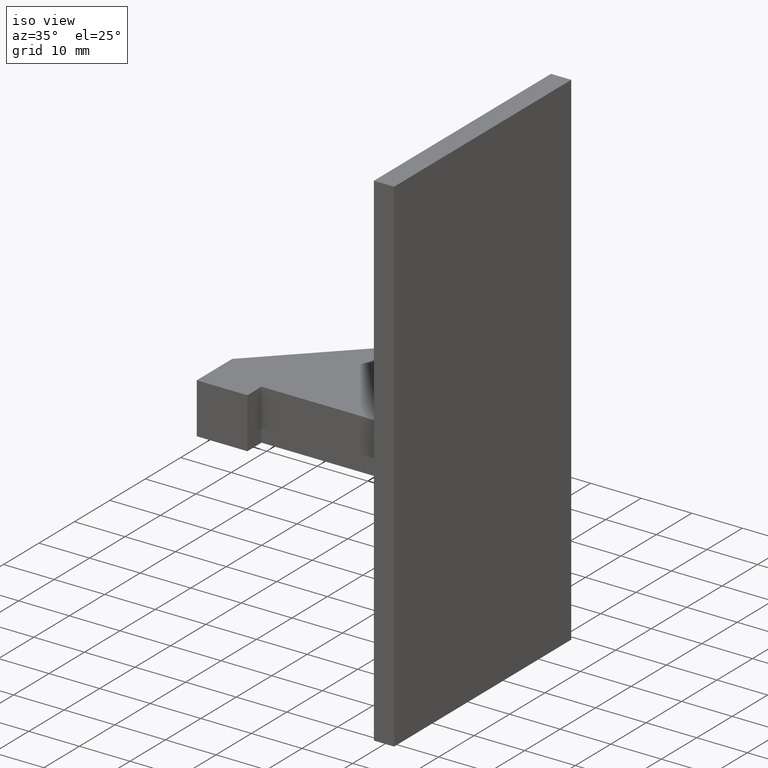
[diagram: clean part render]
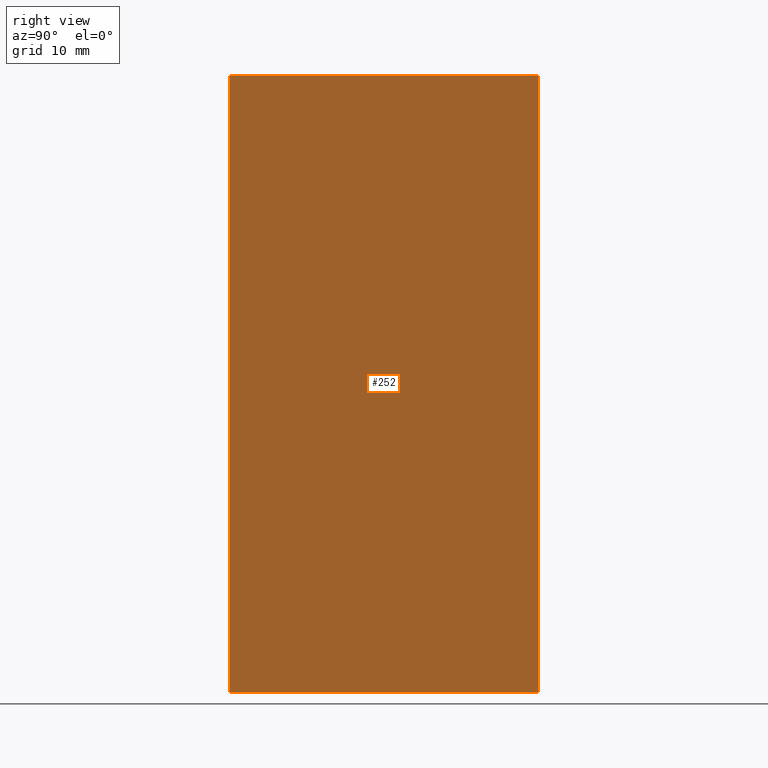
[diagram: tour spotlight — one face highlighted and labeled with its STEP entity id]
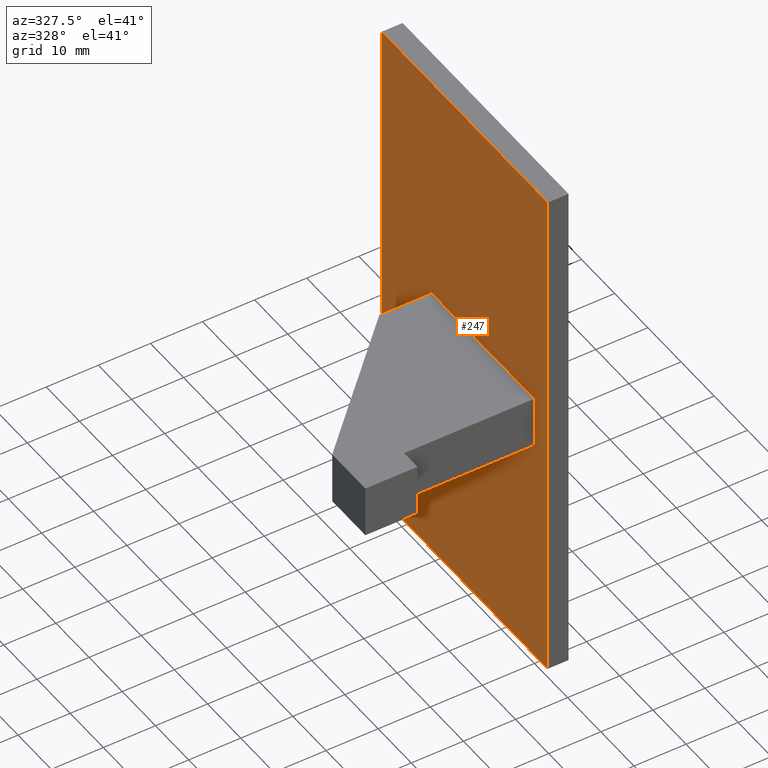
[diagram: tour spotlight — one face highlighted and labeled with its STEP entity id]
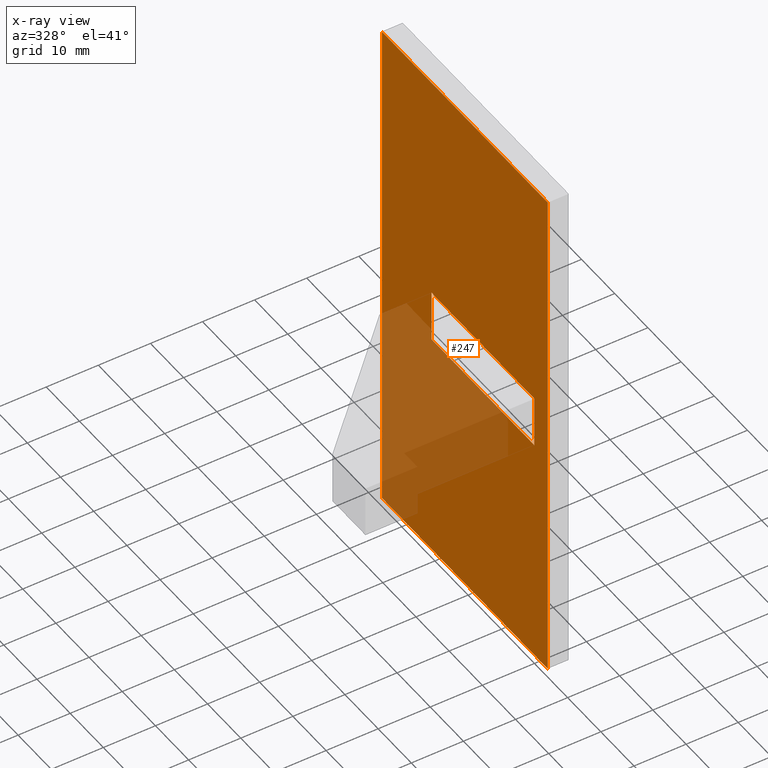
[diagram: x-ray of the same camera — body ghosted, this tour face saturated]
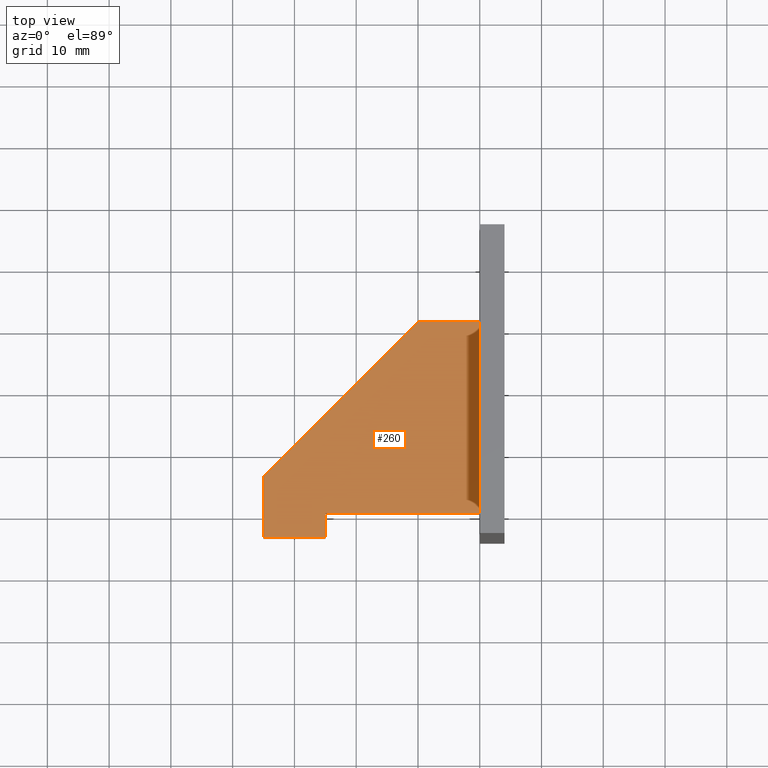
[diagram: tour spotlight — one face highlighted and labeled with its STEP entity id]
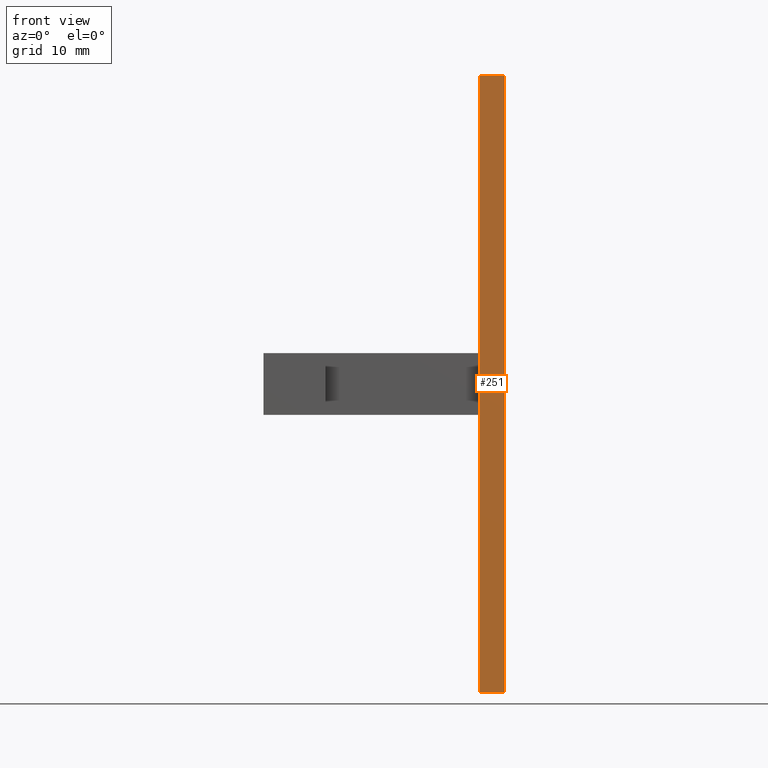
[diagram: tour spotlight — one face highlighted and labeled with its STEP entity id]
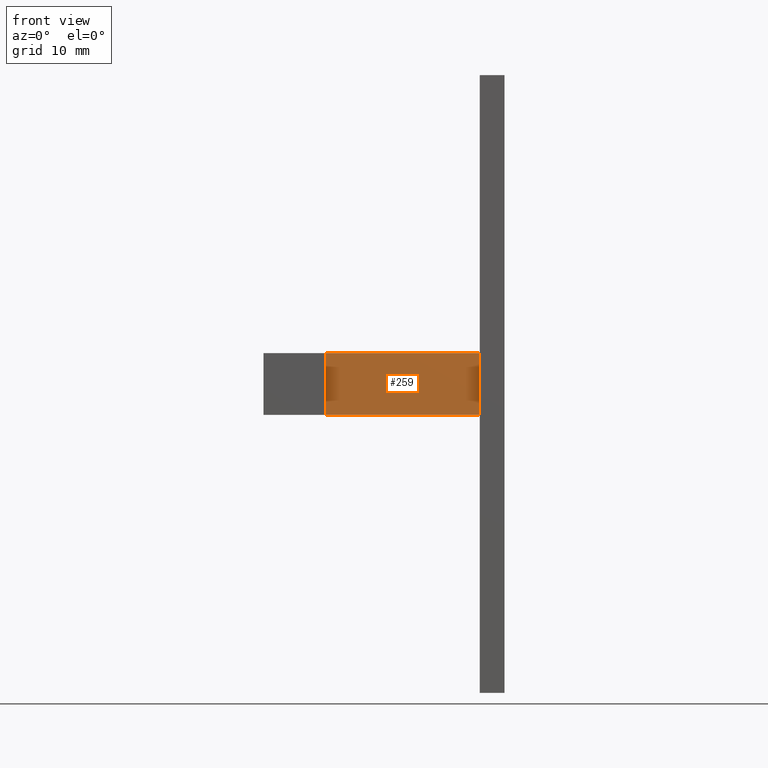
[diagram: tour spotlight — one face highlighted and labeled with its STEP entity id]
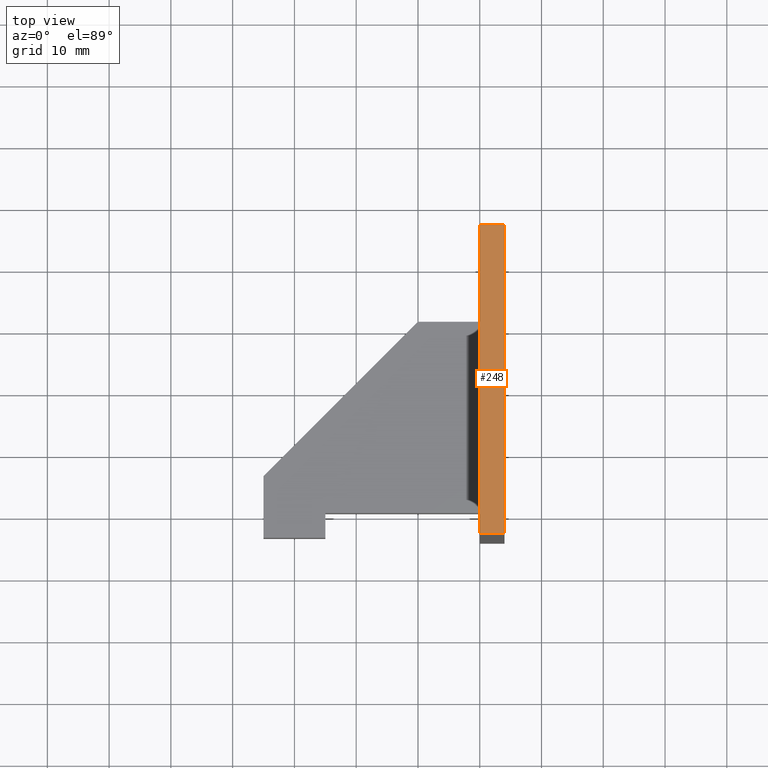
[diagram: tour spotlight — one face highlighted and labeled with its STEP entity id]
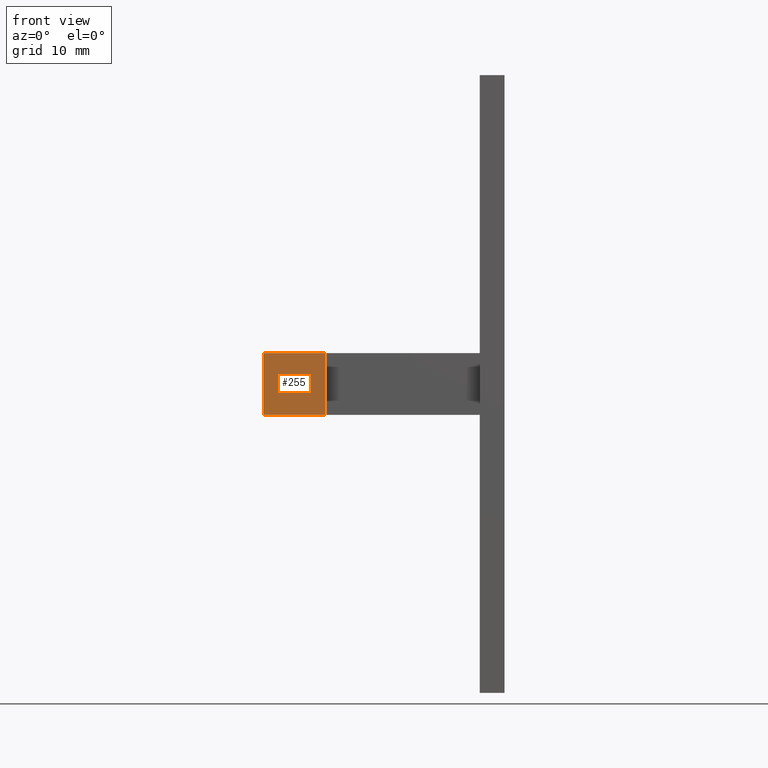
[diagram: tour spotlight — one face highlighted and labeled with its STEP entity id]
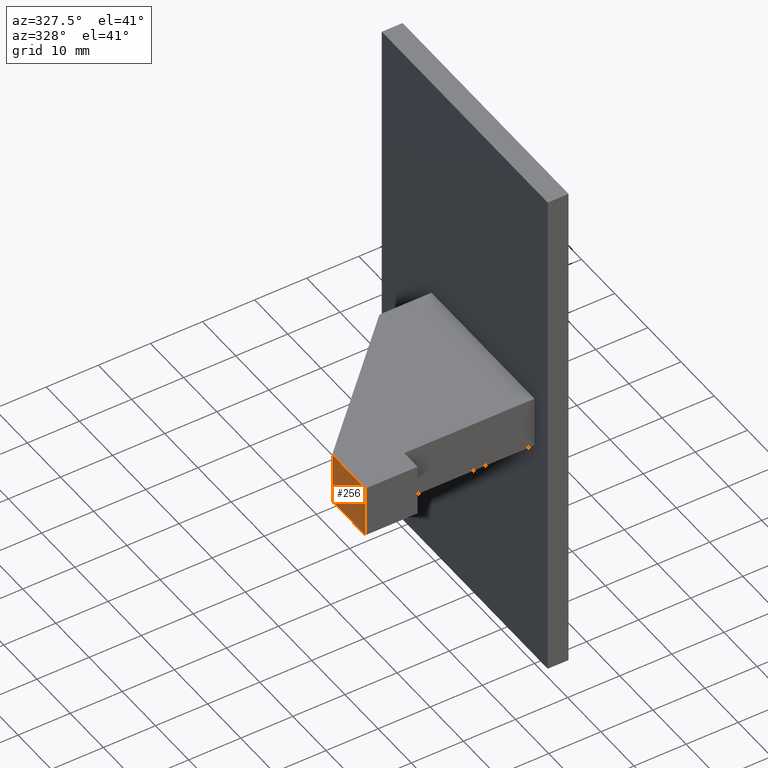
[diagram: tour spotlight — one face highlighted and labeled with its STEP entity id]
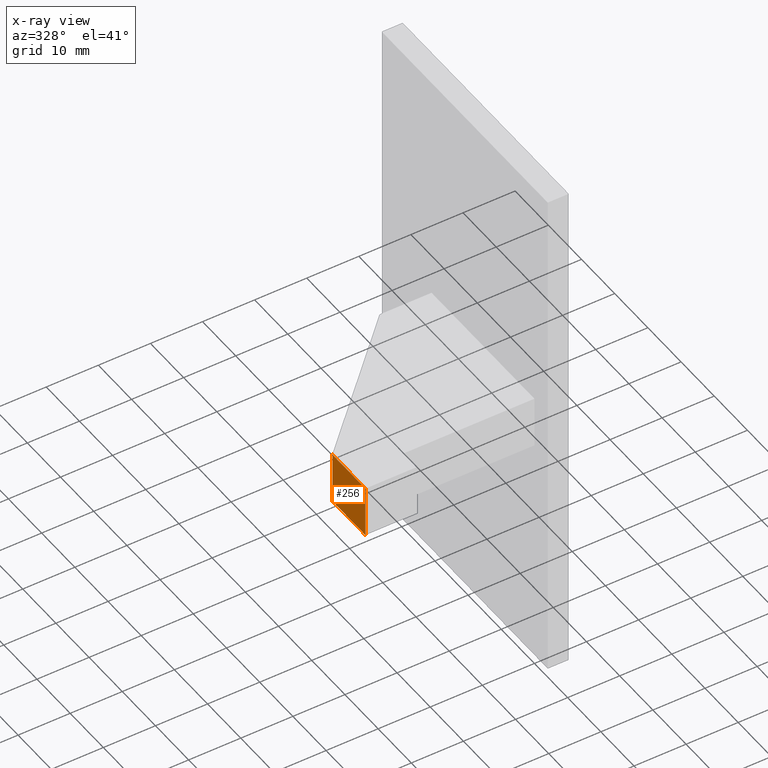
[diagram: x-ray of the same camera — body ghosted, this tour face saturated]
A machine part: a face-by-face anatomy tour. The part has 14 B-rep faces; the first image is the clean iso view, then the 8 largest visible faces are spotlighted one at a time (largest first), each with its STEP entity span.

Face 1 — right view, entity #252. In plain terms, the highlighted planar face has unit normal (1, 0, -0).
Definition (entity closure, byte-faithful):
#22=FACE_OUTER_BOUND('',#37,.T.);
#37=EDGE_LOOP('',(#191,#192,#193,#194));
#54=LINE('',#382,#87);
#57=LINE('',#387,#90);
#59=LINE('',#391,#92);
#61=LINE('',#394,#94);
#87=VECTOR('',#312,10.);
#90=VECTOR('',#317,10.);
#92=VECTOR('',#321,10.);
#94=VECTOR('',#325,10.);
#120=VERTEX_POINT('',#380);
#121=VERTEX_POINT('',#381);
#122=VERTEX_POINT('',#386);
#123=VERTEX_POINT('',#390);
#142=EDGE_CURVE('',#120,#121,#54,.T.);
#145=EDGE_CURVE('',#121,#122,#57,.T.);
#147=EDGE_CURVE('',#122,#123,#59,.T.);
#149=EDGE_CURVE('',#123,#120,#61,.T.);
#191=ORIENTED_EDGE('',*,*,#142,.F.);
#192=ORIENTED_EDGE('',*,*,#149,.F.);
#193=ORIENTED_EDGE('',*,*,#147,.F.);
#194=ORIENTED_EDGE('',*,*,#145,.F.);
#238=PLANE('',#289);
#252=ADVANCED_FACE('',(#22),#238,.T.);
#289=AXIS2_PLACEMENT_3D('',#395,#326,#327);
#312=DIRECTION('',(-7.16272919113004E-17,1.,1.77635683940025E-16));
#317=DIRECTION('',(0.,0.,-1.));
#321=DIRECTION('',(7.16272919113004E-17,-1.,1.77635683940025E-16));
#325=DIRECTION('',(0.,0.,1.));
#326=DIRECTION('center_axis',(1.,7.16272919113004E-17,-4.35829508300968E-33));
#327=DIRECTION('ref_axis',(-4.35829508300968E-33,0.,-1.));
#380=CARTESIAN_POINT('',(4.,-4.,50.));
#381=CARTESIAN_POINT('',(4.,46.,50.));
#382=CARTESIAN_POINT('',(4.,46.,50.));
#386=CARTESIAN_POINT('',(4.,46.,-50.));
#387=CARTESIAN_POINT('',(4.,46.,-50.));
#390=CARTESIAN_POINT('',(4.,-4.,-50.));
#391=CARTESIAN_POINT('',(4.,-4.,-50.));
#394=CARTESIAN_POINT('',(4.,-4.,50.));
#395=CARTESIAN_POINT('Origin',(4.,21.,0.));

Face 2 — auxiliary view, entity #247. An x-ray twin of the same camera follows (body ghosted, this face saturated) — the face is partly hidden behind the body. In plain terms, the highlighted planar face has unit normal (1, 0, -0).
Definition (entity closure, byte-faithful):
#16=FACE_BOUND('',#32,.T.);
#17=FACE_OUTER_BOUND('',#31,.T.);
#31=EDGE_LOOP('',(#167,#168,#169,#170));
#32=EDGE_LOOP('',(#171,#172,#173,#174));
#46=LINE('',#365,#79);
#47=LINE('',#367,#80);
#48=LINE('',#369,#81);
#49=LINE('',#370,#82);
#50=LINE('',#373,#83);
#51=LINE('',#375,#84);
#52=LINE('',#377,#85);
#53=LINE('',#378,#86);
#79=VECTOR('',#302,10.);
#80=VECTOR('',#303,10.);
#81=VECTOR('',#304,10.);
#82=VECTOR('',#305,10.);
#83=VECTOR('',#306,10.);
#84=VECTOR('',#307,10.);
#85=VECTOR('',#308,10.);
#86=VECTOR('',#309,10.);
#112=VERTEX_POINT('',#363);
#113=VERTEX_POINT('',#364);
#114=VERTEX_POINT('',#366);
#115=VERTEX_POINT('',#368);
#116=VERTEX_POINT('',#371);
#117=VERTEX_POINT('',#372);
#118=VERTEX_POINT('',#374);
#119=VERTEX_POINT('',#376);
#134=EDGE_CURVE('',#112,#113,#46,.T.);
#135=EDGE_CURVE('',#114,#112,#47,.T.);
#136=EDGE_CURVE('',#115,#114,#48,.T.);
#137=EDGE_CURVE('',#113,#115,#49,.T.);
#138=EDGE_CURVE('',#116,#117,#50,.T.);
#139=EDGE_CURVE('',#118,#117,#51,.T.);
#140=EDGE_CURVE('',#118,#119,#52,.T.);
#141=EDGE_CURVE('',#116,#119,#53,.T.);
#167=ORIENTED_EDGE('',*,*,#134,.F.);
#168=ORIENTED_EDGE('',*,*,#135,.F.);
#169=ORIENTED_EDGE('',*,*,#136,.F.);
#170=ORIENTED_EDGE('',*,*,#137,.F.);
#171=ORIENTED_EDGE('',*,*,#138,.T.);
#172=ORIENTED_EDGE('',*,*,#139,.F.);
#173=ORIENTED_EDGE('',*,*,#140,.T.);
#174=ORIENTED_EDGE('',*,*,#141,.F.);
#233=PLANE('',#284);
#247=ADVANCED_FACE('',(#17,#16),#233,.F.);
#284=AXIS2_PLACEMENT_3D('',#362,#300,#301);
#300=DIRECTION('center_axis',(1.,7.16272919113004E-17,-4.17313875595372E-33));
#301=DIRECTION('ref_axis',(-4.17313875595372E-33,0.,-1.));
#302=DIRECTION('',(0.,0.,-1.));
#303=DIRECTION('',(7.16272919113004E-17,-1.,-1.77635683940025E-16));
#304=DIRECTION('',(0.,0.,1.));
#305=DIRECTION('',(-7.16272919113004E-17,1.,-1.77635683940025E-16));
#306=DIRECTION('',(-7.16272919113004E-17,1.,0.));
#307=DIRECTION('',(0.,0.,-1.));
#308=DIRECTION('',(7.16272919113004E-17,-1.,0.));
#309=DIRECTION('',(0.,0.,1.));
#362=CARTESIAN_POINT('Origin',(-1.50417313013731E-15,21.,0.));
#363=CARTESIAN_POINT('',(2.86509167645202E-16,-4.,50.));
#364=CARTESIAN_POINT('',(2.86509167645202E-16,-4.,-50.));
#365=CARTESIAN_POINT('',(2.86509167645202E-16,-4.,50.));
#366=CARTESIAN_POINT('',(-3.29485542791982E-15,46.,50.));
#367=CARTESIAN_POINT('',(-3.29485542791982E-15,46.,50.));
#368=CARTESIAN_POINT('',(-3.29485542791982E-15,46.,-50.));
#369=CARTESIAN_POINT('',(-3.29485542791982E-15,46.,-50.));
#370=CARTESIAN_POINT('',(2.86509167645202E-16,-4.,-50.));
#371=CARTESIAN_POINT('',(0.,0.,-5.));
#372=CARTESIAN_POINT('',(-2.22044604925031E-15,31.,-5.));
#373=CARTESIAN_POINT('',(-2.22044604925031E-15,31.,-5.));
#374=CARTESIAN_POINT('',(-2.22044604925031E-15,31.,5.));
#375=CARTESIAN_POINT('',(-2.22044604925031E-15,31.,0.));
#376=CARTESIAN_POINT('',(0.,0.,5.));
#377=CARTESIAN_POINT('',(-2.22044604925031E-15,31.,5.));
#378=CARTESIAN_POINT('',(0.,0.,0.));

Face 3 — top view, entity #260. In plain terms, the highlighted planar face has unit normal (0, 0, 1).
Definition (entity closure, byte-faithful):
#30=FACE_OUTER_BOUND('',#45,.T.);
#45=EDGE_LOOP('',(#226,#227,#228,#229,#230,#231,#232));
#52=LINE('',#377,#85);
#68=LINE('',#411,#101);
#71=LINE('',#416,#104);
#73=LINE('',#420,#106);
#75=LINE('',#424,#108);
#77=LINE('',#427,#110);
#78=LINE('',#429,#111);
#85=VECTOR('',#308,10.);
#101=VECTOR('',#338,10.);
#104=VECTOR('',#343,10.);
#106=VECTOR('',#347,10.);
#108=VECTOR('',#351,10.);
#110=VECTOR('',#355,10.);
#111=VECTOR('',#358,10.);
#118=VERTEX_POINT('',#374);
#119=VERTEX_POINT('',#376);
#129=VERTEX_POINT('',#409);
#130=VERTEX_POINT('',#410);
#131=VERTEX_POINT('',#415);
#132=VERTEX_POINT('',#419);
#133=VERTEX_POINT('',#423);
#140=EDGE_CURVE('',#118,#119,#52,.T.);
#156=EDGE_CURVE('',#129,#130,#68,.T.);
#159=EDGE_CURVE('',#130,#131,#71,.T.);
#161=EDGE_CURVE('',#131,#132,#73,.T.);
#163=EDGE_CURVE('',#132,#133,#75,.T.);
#165=EDGE_CURVE('',#133,#118,#77,.T.);
#166=EDGE_CURVE('',#119,#129,#78,.T.);
#226=ORIENTED_EDGE('',*,*,#156,.F.);
#227=ORIENTED_EDGE('',*,*,#166,.F.);
#228=ORIENTED_EDGE('',*,*,#140,.F.);
#229=ORIENTED_EDGE('',*,*,#165,.F.);
#230=ORIENTED_EDGE('',*,*,#163,.F.);
#231=ORIENTED_EDGE('',*,*,#161,.F.);
#232=ORIENTED_EDGE('',*,*,#159,.F.);
#246=PLANE('',#297);
#260=ADVANCED_FACE('',(#30),#246,.T.);
#297=AXIS2_PLACEMENT_3D('',#430,#359,#360);
#308=DIRECTION('',(7.16272919113004E-17,-1.,0.));
#338=DIRECTION('',(0.,-1.,0.));
#343=DIRECTION('',(-1.,0.,0.));
#347=DIRECTION('',(-1.33226762955019E-15,1.,0.));
#351=DIRECTION('',(0.707106781186548,0.707106781186547,0.));
#355=DIRECTION('',(1.,0.,0.));
#358=DIRECTION('',(-1.,-8.88178419700125E-17,0.));
#359=DIRECTION('center_axis',(0.,0.,1.));
#360=DIRECTION('ref_axis',(1.,0.,0.));
#374=CARTESIAN_POINT('',(-2.22044604925031E-15,31.,5.));
#376=CARTESIAN_POINT('',(0.,0.,5.));
#377=CARTESIAN_POINT('',(-2.22044604925031E-15,31.,5.));
#409=CARTESIAN_POINT('',(-25.,-2.22044604925031E-15,5.));
#410=CARTESIAN_POINT('',(-25.,-4.,5.));
#411=CARTESIAN_POINT('',(-25.,-2.22044604925031E-15,5.));
#415=CARTESIAN_POINT('',(-35.,-4.,5.));
#416=CARTESIAN_POINT('',(-25.,-4.,5.));
#419=CARTESIAN_POINT('',(-35.,6.,5.));
#420=CARTESIAN_POINT('',(-35.,-4.,5.));
#423=CARTESIAN_POINT('',(-10.,31.,5.));
#424=CARTESIAN_POINT('',(-35.,6.,5.));
#427=CARTESIAN_POINT('',(-10.,31.,5.));
#429=CARTESIAN_POINT('',(0.,0.,5.));
#430=CARTESIAN_POINT('Origin',(-15.2206929768812,11.2206929768812,5.));

Face 4 — front view, entity #251. In plain terms, the highlighted planar face has unit normal (0, -1, 0).
Definition (entity closure, byte-faithful):
#21=FACE_OUTER_BOUND('',#36,.T.);
#36=EDGE_LOOP('',(#187,#188,#189,#190));
#46=LINE('',#365,#79);
#56=LINE('',#384,#89);
#60=LINE('',#392,#93);
#61=LINE('',#394,#94);
#79=VECTOR('',#302,10.);
#89=VECTOR('',#314,10.);
#93=VECTOR('',#322,10.);
#94=VECTOR('',#325,10.);
#112=VERTEX_POINT('',#363);
#113=VERTEX_POINT('',#364);
#120=VERTEX_POINT('',#380);
#123=VERTEX_POINT('',#390);
#134=EDGE_CURVE('',#112,#113,#46,.T.);
#144=EDGE_CURVE('',#112,#120,#56,.T.);
#148=EDGE_CURVE('',#113,#123,#60,.T.);
#149=EDGE_CURVE('',#123,#120,#61,.T.);
#187=ORIENTED_EDGE('',*,*,#149,.T.);
#188=ORIENTED_EDGE('',*,*,#144,.F.);
#189=ORIENTED_EDGE('',*,*,#134,.T.);
#190=ORIENTED_EDGE('',*,*,#148,.T.);
#237=PLANE('',#288);
#251=ADVANCED_FACE('',(#21),#237,.T.);
#288=AXIS2_PLACEMENT_3D('',#393,#323,#324);
#302=DIRECTION('',(0.,0.,-1.));
#314=DIRECTION('',(1.,1.38777878078145E-16,0.));
#322=DIRECTION('',(1.,1.38777878078145E-16,0.));
#323=DIRECTION('center_axis',(1.38777878078145E-16,-1.,0.));
#324=DIRECTION('ref_axis',(0.,0.,-1.));
#325=DIRECTION('',(0.,0.,1.));
#363=CARTESIAN_POINT('',(2.86509167645202E-16,-4.,50.));
#364=CARTESIAN_POINT('',(2.86509167645202E-16,-4.,-50.));
#365=CARTESIAN_POINT('',(2.86509167645202E-16,-4.,50.));
#380=CARTESIAN_POINT('',(4.,-4.,50.));
#384=CARTESIAN_POINT('',(2.86509167645202E-16,-4.,50.));
#390=CARTESIAN_POINT('',(4.,-4.,-50.));
#392=CARTESIAN_POINT('',(2.86509167645202E-16,-4.,-50.));
#393=CARTESIAN_POINT('Origin',(2.86509167645202E-16,-4.,-50.));
#394=CARTESIAN_POINT('',(4.,-4.,50.));

Face 5 — front view, entity #259. In plain terms, the highlighted planar face has unit normal (0, -1, 0).
Definition (entity closure, byte-faithful):
#29=FACE_OUTER_BOUND('',#44,.T.);
#44=EDGE_LOOP('',(#222,#223,#224,#225));
#53=LINE('',#378,#86);
#62=LINE('',#398,#95);
#70=LINE('',#413,#103);
#78=LINE('',#429,#111);
#86=VECTOR('',#309,10.);
#95=VECTOR('',#330,10.);
#103=VECTOR('',#340,10.);
#111=VECTOR('',#358,10.);
#116=VERTEX_POINT('',#371);
#119=VERTEX_POINT('',#376);
#124=VERTEX_POINT('',#397);
#129=VERTEX_POINT('',#409);
#141=EDGE_CURVE('',#116,#119,#53,.T.);
#150=EDGE_CURVE('',#124,#116,#62,.T.);
#158=EDGE_CURVE('',#129,#124,#70,.T.);
#166=EDGE_CURVE('',#119,#129,#78,.T.);
#222=ORIENTED_EDGE('',*,*,#166,.T.);
#223=ORIENTED_EDGE('',*,*,#158,.T.);
#224=ORIENTED_EDGE('',*,*,#150,.T.);
#225=ORIENTED_EDGE('',*,*,#141,.T.);
#245=PLANE('',#296);
#259=ADVANCED_FACE('',(#29),#245,.T.);
#296=AXIS2_PLACEMENT_3D('',#428,#356,#357);
#309=DIRECTION('',(0.,0.,1.));
#330=DIRECTION('',(1.,8.88178419700125E-17,0.));
#340=DIRECTION('',(0.,0.,-1.));
#356=DIRECTION('center_axis',(8.88178419700125E-17,-1.,0.));
#357=DIRECTION('ref_axis',(0.,0.,-1.));
#358=DIRECTION('',(-1.,-8.88178419700125E-17,0.));
#371=CARTESIAN_POINT('',(0.,0.,-5.));
#376=CARTESIAN_POINT('',(0.,0.,5.));
#378=CARTESIAN_POINT('',(0.,0.,0.));
#397=CARTESIAN_POINT('',(-25.,-2.22044604925031E-15,-5.));
#398=CARTESIAN_POINT('',(0.,0.,-5.));
#409=CARTESIAN_POINT('',(-25.,-2.22044604925031E-15,5.));
#413=CARTESIAN_POINT('',(-25.,-2.22044604925031E-15,0.));
#428=CARTESIAN_POINT('Origin',(0.,0.,0.));
#429=CARTESIAN_POINT('',(0.,0.,5.));

Face 6 — top view, entity #248. In plain terms, the highlighted planar face has unit normal (0, -0, 1).
Definition (entity closure, byte-faithful):
#18=FACE_OUTER_BOUND('',#33,.T.);
#33=EDGE_LOOP('',(#175,#176,#177,#178));
#47=LINE('',#367,#80);
#54=LINE('',#382,#87);
#55=LINE('',#383,#88);
#56=LINE('',#384,#89);
#80=VECTOR('',#303,10.);
#87=VECTOR('',#312,10.);
#88=VECTOR('',#313,10.);
#89=VECTOR('',#314,10.);
#112=VERTEX_POINT('',#363);
#114=VERTEX_POINT('',#366);
#120=VERTEX_POINT('',#380);
#121=VERTEX_POINT('',#381);
#135=EDGE_CURVE('',#114,#112,#47,.T.);
#142=EDGE_CURVE('',#120,#121,#54,.T.);
#143=EDGE_CURVE('',#114,#121,#55,.T.);
#144=EDGE_CURVE('',#112,#120,#56,.T.);
#175=ORIENTED_EDGE('',*,*,#142,.T.);
#176=ORIENTED_EDGE('',*,*,#143,.F.);
#177=ORIENTED_EDGE('',*,*,#135,.T.);
#178=ORIENTED_EDGE('',*,*,#144,.T.);
#234=PLANE('',#285);
#248=ADVANCED_FACE('',(#18),#234,.T.);
#285=AXIS2_PLACEMENT_3D('',#379,#310,#311);
#303=DIRECTION('',(7.16272919113004E-17,-1.,-1.77635683940025E-16));
#310=DIRECTION('center_axis',(2.46519032881566E-32,-1.77635683940025E-16,
1.));
#311=DIRECTION('ref_axis',(1.,0.,-2.46519032881566E-32));
#312=DIRECTION('',(-7.16272919113004E-17,1.,1.77635683940025E-16));
#313=DIRECTION('',(1.,1.38777878078145E-16,0.));
#314=DIRECTION('',(1.,1.38777878078145E-16,0.));
#363=CARTESIAN_POINT('',(2.86509167645202E-16,-4.,50.));
#366=CARTESIAN_POINT('',(-3.29485542791982E-15,46.,50.));
#367=CARTESIAN_POINT('',(-3.29485542791982E-15,46.,50.));
#379=CARTESIAN_POINT('Origin',(2.86509167645202E-16,-4.,50.));
#380=CARTESIAN_POINT('',(4.,-4.,50.));
#381=CARTESIAN_POINT('',(4.,46.,50.));
#382=CARTESIAN_POINT('',(4.,46.,50.));
#383=CARTESIAN_POINT('',(-3.29485542791982E-15,46.,50.));
#384=CARTESIAN_POINT('',(2.86509167645202E-16,-4.,50.));

Face 7 — front view, entity #255. In plain terms, the highlighted planar face has unit normal (0, -1, 0).
Definition (entity closure, byte-faithful):
#25=FACE_OUTER_BOUND('',#40,.T.);
#40=EDGE_LOOP('',(#206,#207,#208,#209));
#64=LINE('',#402,#97);
#69=LINE('',#412,#102);
#71=LINE('',#416,#104);
#72=LINE('',#417,#105);
#97=VECTOR('',#332,10.);
#102=VECTOR('',#339,10.);
#104=VECTOR('',#343,10.);
#105=VECTOR('',#344,10.);
#125=VERTEX_POINT('',#399);
#126=VERTEX_POINT('',#401);
#130=VERTEX_POINT('',#410);
#131=VERTEX_POINT('',#415);
#152=EDGE_CURVE('',#126,#125,#64,.T.);
#157=EDGE_CURVE('',#130,#125,#69,.T.);
#159=EDGE_CURVE('',#130,#131,#71,.T.);
#160=EDGE_CURVE('',#131,#126,#72,.T.);
#206=ORIENTED_EDGE('',*,*,#159,.T.);
#207=ORIENTED_EDGE('',*,*,#160,.T.);
#208=ORIENTED_EDGE('',*,*,#152,.T.);
#209=ORIENTED_EDGE('',*,*,#157,.F.);
#241=PLANE('',#292);
#255=ADVANCED_FACE('',(#25),#241,.T.);
#292=AXIS2_PLACEMENT_3D('',#414,#341,#342);
#332=DIRECTION('',(1.,0.,0.));
#339=DIRECTION('',(0.,0.,-1.));
#341=DIRECTION('center_axis',(0.,-1.,0.));
#342=DIRECTION('ref_axis',(0.,0.,-1.));
#343=DIRECTION('',(-1.,0.,0.));
#344=DIRECTION('',(0.,0.,-1.));
#399=CARTESIAN_POINT('',(-25.,-4.,-5.));
#401=CARTESIAN_POINT('',(-35.,-4.,-5.));
#402=CARTESIAN_POINT('',(-25.,-4.,-5.));
#410=CARTESIAN_POINT('',(-25.,-4.,5.));
#412=CARTESIAN_POINT('',(-25.,-4.,0.));
#414=CARTESIAN_POINT('Origin',(-25.,-4.,0.));
#415=CARTESIAN_POINT('',(-35.,-4.,5.));
#416=CARTESIAN_POINT('',(-25.,-4.,5.));
#417=CARTESIAN_POINT('',(-35.,-4.,0.));

Face 8 — auxiliary view, entity #256. An x-ray twin of the same camera follows (body ghosted, this face saturated) — the face is partly hidden behind the body. In plain terms, the highlighted planar face has unit normal (-1, -0, 0).
Definition (entity closure, byte-faithful):
#26=FACE_OUTER_BOUND('',#41,.T.);
#41=EDGE_LOOP('',(#210,#211,#212,#213));
#65=LINE('',#404,#98);
#72=LINE('',#417,#105);
#73=LINE('',#420,#106);
#74=LINE('',#421,#107);
#98=VECTOR('',#333,10.);
#105=VECTOR('',#344,10.);
#106=VECTOR('',#347,10.);
#107=VECTOR('',#348,10.);
#126=VERTEX_POINT('',#401);
#127=VERTEX_POINT('',#403);
#131=VERTEX_POINT('',#415);
#132=VERTEX_POINT('',#419);
#153=EDGE_CURVE('',#127,#126,#65,.T.);
#160=EDGE_CURVE('',#131,#126,#72,.T.);
#161=EDGE_CURVE('',#131,#132,#73,.T.);
#162=EDGE_CURVE('',#132,#127,#74,.T.);
#210=ORIENTED_EDGE('',*,*,#161,.T.);
#211=ORIENTED_EDGE('',*,*,#162,.T.);
#212=ORIENTED_EDGE('',*,*,#153,.T.);
#213=ORIENTED_EDGE('',*,*,#160,.F.);
#242=PLANE('',#293);
#256=ADVANCED_FACE('',(#26),#242,.T.);
#293=AXIS2_PLACEMENT_3D('',#418,#345,#346);
#333=DIRECTION('',(1.33226762955019E-15,-1.,0.));
#344=DIRECTION('',(0.,0.,-1.));
#345=DIRECTION('center_axis',(-1.,-1.33226762955019E-15,0.));
#346=DIRECTION('ref_axis',(0.,0.,1.));
#347=DIRECTION('',(-1.33226762955019E-15,1.,0.));
#348=DIRECTION('',(0.,0.,-1.));
#401=CARTESIAN_POINT('',(-35.,-4.,-5.));
#403=CARTESIAN_POINT('',(-35.,6.,-5.));
#404=CARTESIAN_POINT('',(-35.,-4.,-5.));
#415=CARTESIAN_POINT('',(-35.,-4.,5.));
#417=CARTESIAN_POINT('',(-35.,-4.,0.));
#418=CARTESIAN_POINT('Origin',(-35.,-4.,0.));
#419=CARTESIAN_POINT('',(-35.,6.,5.));
#420=CARTESIAN_POINT('',(-35.,-4.,5.));
#421=CARTESIAN_POINT('',(-35.,6.,0.));